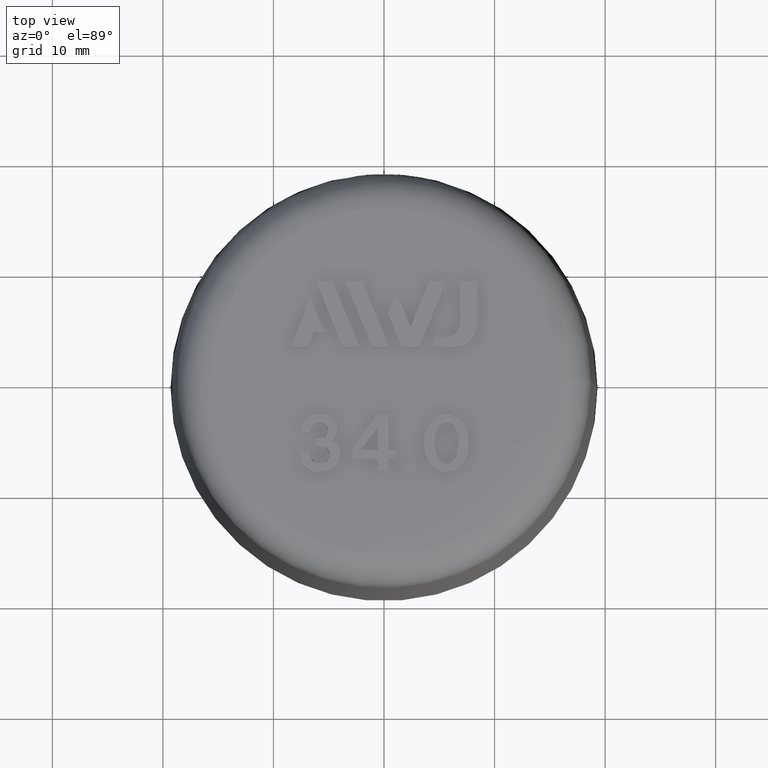
[diagram: clean part render]
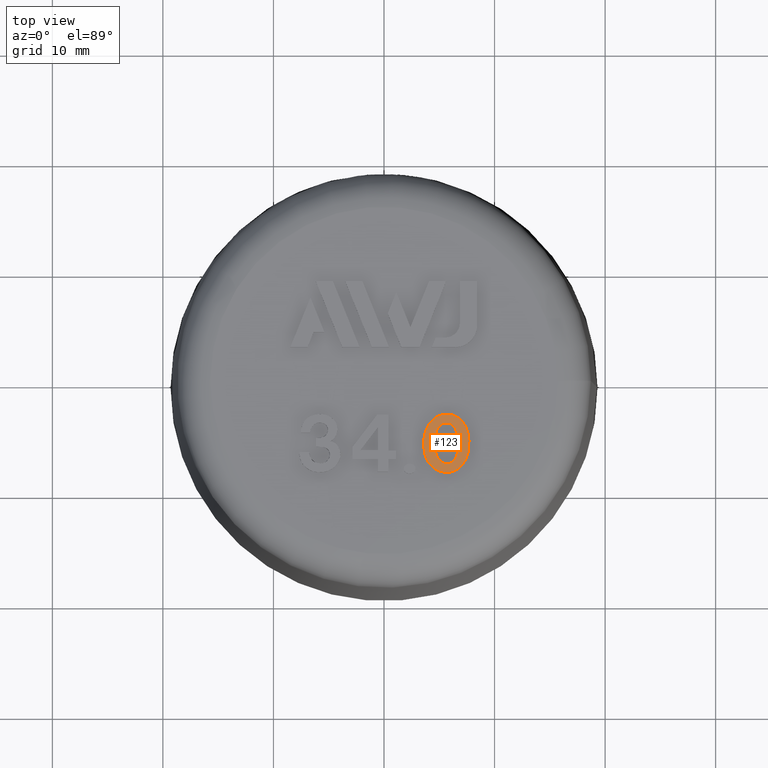
[diagram: same view with one face highlighted and labeled with its STEP entity id]
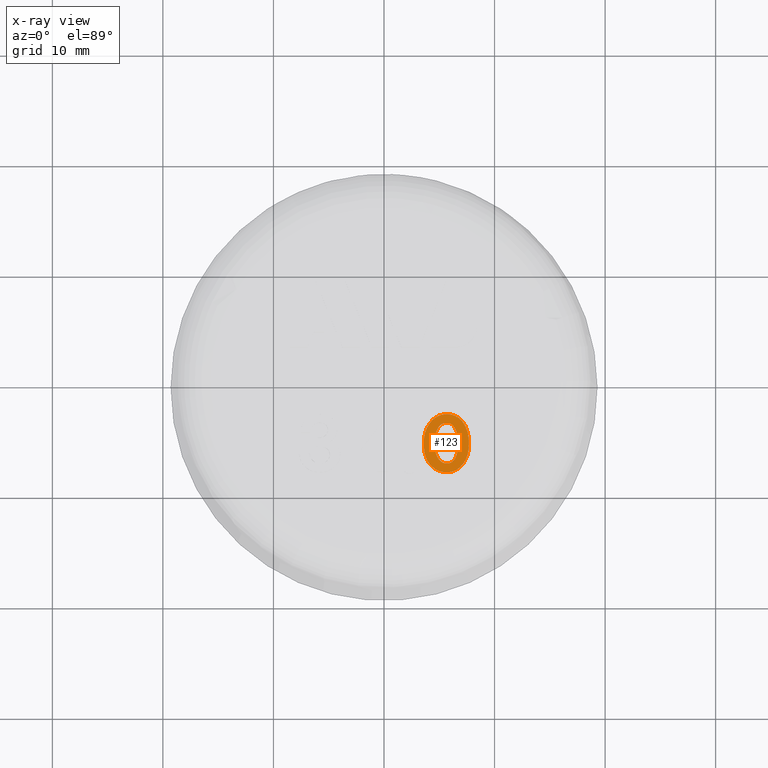
[diagram: x-ray of the same camera — body ghosted, the highlighted face saturated]
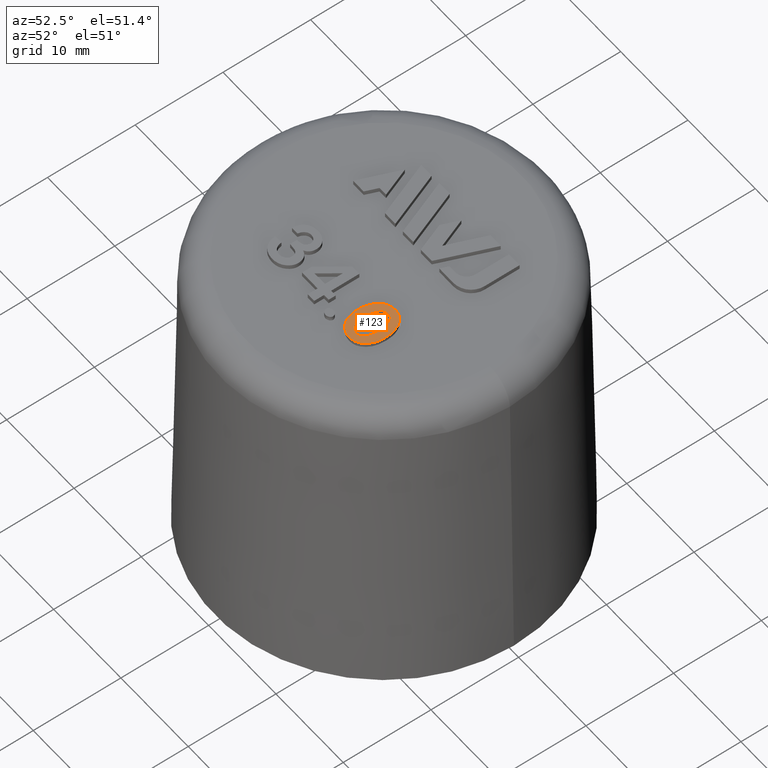
[diagram: same view with one face highlighted and labeled with its STEP entity id]
A machine part, top view. The second image highlights one B-rep face of the part: STEP entity #123.
The next image is the same camera in x-ray: the body ghosted, the highlighted face saturated — about 0% of this face is hidden behind the body in this view.
A second angle (auxiliary view) of the same face is appended — the face is thin or edge-on in the first view.
In plain terms, the highlighted planar face has unit normal (0, -0, -1).
Its self-contained STEP definition (entity closure, byte-faithful):
#123 = ADVANCED_FACE( '', ( #261, #262 ), #263, .F. );
#261 = FACE_OUTER_BOUND( '', #426, .T. );
#262 = FACE_BOUND( '', #427, .T. );
#263 = PLANE( '', #428 );
#426 = EDGE_LOOP( '', ( #897 ) );
#427 = EDGE_LOOP( '', ( #898 ) );
#428 = AXIS2_PLACEMENT_3D( '', #899, #900, #901 );
#897 = ORIENTED_EDGE( '', *, *, #1157, .T. );
#898 = ORIENTED_EDGE( '', *, *, #1165, .F. );
#899 = CARTESIAN_POINT( '', ( 7.07689023989987, -3.70136441616051, 37.5000000000000 ) );
#900 = DIRECTION( '', ( 6.13614949308772E-017, -1.94293244496741E-019, -1.00000000000000 ) );
#901 = DIRECTION( '', ( 6.69494841509799E-017, 1.00000000000000, -1.94293244496737E-019 ) );
#1157 = EDGE_CURVE( '', #1379, #1379, #1380, .T. );
#1165 = EDGE_CURVE( '', #1395, #1395, #1396, .T. );
#1379 = VERTEX_POINT( '', #1828 );
#1380 = B_SPLINE_CURVE_WITH_KNOTS( '', 2, ( #1829, #1830, #1831, #1832, #1833, #1834, #1835, #1836, #1837, #1838, #1839, #1840, #1841, #1842, #1843, #1844, #1845 ), .UNSPECIFIED., .T., .F., ( 3, 2, 2, 2, 2, 2, 2, 2, 3 ), ( -8.00000000000000, -7.00000000000000, -6.00000000000000, -5.00000000000000, -4.00000000000000, -3.00000000000000, -2.00000000000000, -1.00000000000000, 0.000000000000000 ), .UNSPECIFIED. );
#1395 = VERTEX_POINT( '', #1897 );
#1396 = B_SPLINE_CURVE_WITH_KNOTS( '', 2, ( #1898, #1899, #1900, #1901, #1902, #1903, #1904, #1905, #1906, #1907, #1908, #1909, #1910, #1911, #1912, #1913, #1914 ), .UNSPECIFIED., .T., .F., ( 3, 2, 2, 2, 2, 2, 2, 2, 3 ), ( 0.000000000000000, 1.00000000000000, 2.00000000000000, 3.00000000000000, 4.00000000000000, 5.00000000000000, 6.00000000000000, 7.00000000000000, 8.00000000000000 ), .UNSPECIFIED. );
#1828 = CARTESIAN_POINT( '', ( 4.23722462830603, -7.69286845880826, 37.5000000000000 ) );
#1829 = CARTESIAN_POINT( '', ( 4.23722462830603, -7.69286845880826, 37.5000000000000 ) );
#1830 = CARTESIAN_POINT( '', ( 4.80914062500000, -8.31611025007733, 37.5000000000000 ) );
#1831 = CARTESIAN_POINT( '', ( 5.67914062500000, -8.31611025007733, 37.5000000000000 ) );
#1832 = CARTESIAN_POINT( '', ( 6.57914062500000, -8.31611025007733, 37.5000000000000 ) );
#1833 = CARTESIAN_POINT( '', ( 7.15282289748817, -7.54384565249711, 37.5000000000000 ) );
#1834 = CARTESIAN_POINT( '', ( 7.74914062500000, -6.74111025007733, 37.5000000000000 ) );
#1835 = CARTESIAN_POINT( '', ( 7.68465443793628, -5.46482113110792, 37.5000000000000 ) );
#1836 = CARTESIAN_POINT( '', ( 7.62914062500000, -4.36611025007733, 37.5000000000000 ) );
#1837 = CARTESIAN_POINT( '', ( 7.07689023989987, -3.70136441616051, 37.5000000000000 ) );
#1838 = CARTESIAN_POINT( '', ( 6.54914062500000, -3.06611025007733, 37.5000000000000 ) );
#1839 = CARTESIAN_POINT( '', ( 5.67914062500000, -3.06611025007733, 37.5000000000000 ) );
#1840 = CARTESIAN_POINT( '', ( 4.74914062500000, -3.06611025007733, 37.5000000000000 ) );
#1841 = CARTESIAN_POINT( '', ( 4.17194062500000, -3.83571025007733, 37.5000000000000 ) );
#1842 = CARTESIAN_POINT( '', ( 3.54914062500000, -4.66611025007733, 37.5000000000000 ) );
#1843 = CARTESIAN_POINT( '', ( 3.59743015051240, -5.94041717332107, 37.5000000000000 ) );
#1844 = CARTESIAN_POINT( '', ( 3.63914062500000, -7.04111025007733, 37.5000000000000 ) );
#1845 = CARTESIAN_POINT( '', ( 4.23722462830603, -7.69286845880826, 37.5000000000000 ) );
#1897 = CARTESIAN_POINT( '', ( 4.77914062500000, -6.84111025007733, 37.5000100000000 ) );
#1898 = CARTESIAN_POINT( '', ( 4.77914062500000, -6.84111025007733, 37.5000100000000 ) );
#1899 = CARTESIAN_POINT( '', ( 5.04914062500000, -7.44111025007733, 37.5000100000000 ) );
#1900 = CARTESIAN_POINT( '', ( 5.55944062500000, -7.51401025007733, 37.5000100000000 ) );
#1901 = CARTESIAN_POINT( '', ( 6.09914062500000, -7.59111025007733, 37.5000100000000 ) );
#1902 = CARTESIAN_POINT( '', ( 6.41962436806106, -7.08508328734934, 37.5000100000000 ) );
#1903 = CARTESIAN_POINT( '', ( 6.66914062500000, -6.69111025007733, 37.5000100000000 ) );
#1904 = CARTESIAN_POINT( '', ( 6.72425285670692, -5.99072563880181, 37.5000100000000 ) );
#1905 = CARTESIAN_POINT( '', ( 6.78914062500000, -5.16611025007733, 37.5000100000000 ) );
#1906 = CARTESIAN_POINT( '', ( 6.54502562445133, -4.56778917030119, 37.5000100000000 ) );
#1907 = CARTESIAN_POINT( '', ( 6.27914062500000, -3.91611025007733, 37.5000100000000 ) );
#1908 = CARTESIAN_POINT( '', ( 5.79997908223868, -3.85906720927241, 37.5000100000000 ) );
#1909 = CARTESIAN_POINT( '', ( 5.22914062500000, -3.79111025007733, 37.5000100000000 ) );
#1910 = CARTESIAN_POINT( '', ( 4.93497071939200, -4.22010802908899, 37.5000100000000 ) );
#1911 = CARTESIAN_POINT( '', ( 4.62914062500000, -4.66611025007733, 37.5000100000000 ) );
#1912 = CARTESIAN_POINT( '', ( 4.57387504649878, -5.39147096790581, 37.5000100000000 ) );
#1913 = CARTESIAN_POINT( '', ( 4.50914062500000, -6.24111025007733, 37.5000100000000 ) );
#1914 = CARTESIAN_POINT( '', ( 4.77914062500000, -6.84111025007733, 37.5000100000000 ) );